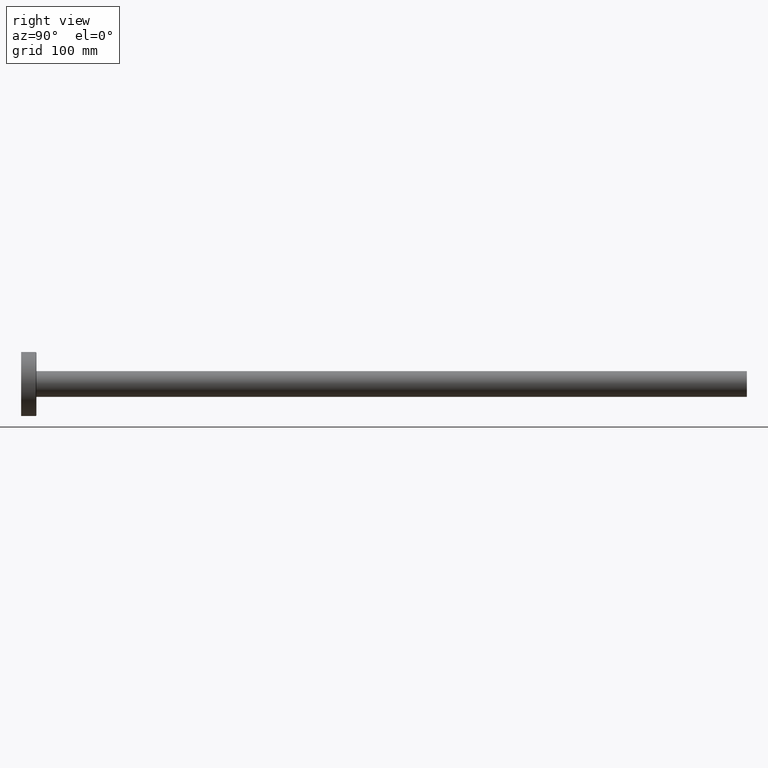
[diagram: clean part render]
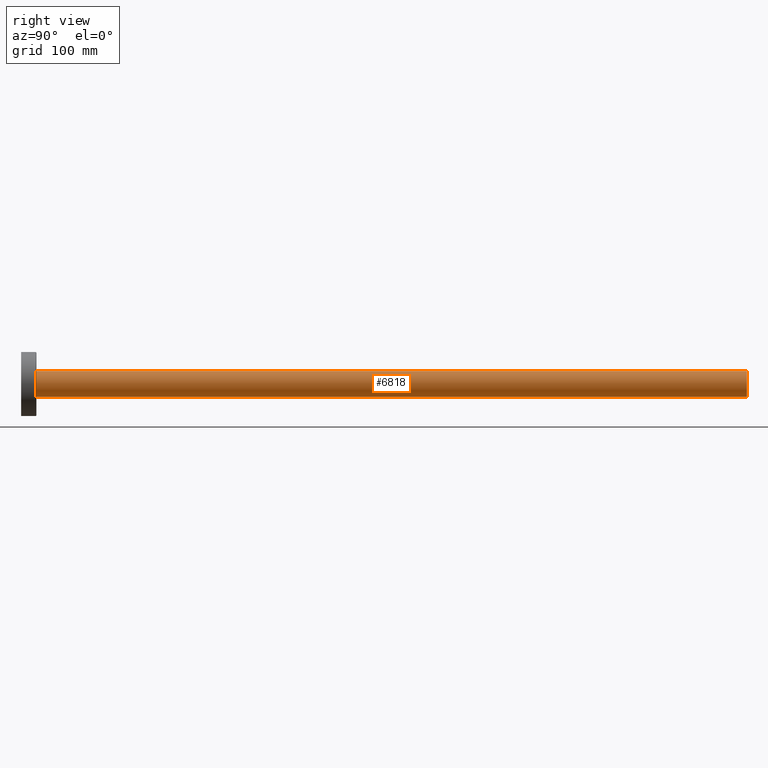
[diagram: same view with one face highlighted and labeled with its STEP entity id]
A machine part, right view. The second image highlights one B-rep face of the part: STEP entity #6818.
In plain terms, the highlighted cylindrical surface (edge-blend (fillet) strip) has radius 21.2 mm, axis along (-0, -1, -0).
Its self-contained STEP definition (entity closure, byte-faithful):
#26 = VERTEX_POINT ( 'NONE', #7627 ) ;
#736 = DIRECTION ( 'NONE',  ( -0.0000000000000000000, -1.000000000000000000, -0.0000000000000000000 ) ) ;
#775 = CARTESIAN_POINT ( 'NONE',  ( 0.0000000000000000000, 0.0000000000000000000, -21.19999999999999900 ) ) ;
#1147 = EDGE_CURVE ( 'NONE', #9317, #11916, #4650, .T. ) ;
#1333 = DIRECTION ( 'NONE',  ( -0.0000000000000000000, -1.000000000000000000, -0.0000000000000000000 ) ) ;
#1645 = CARTESIAN_POINT ( 'NONE',  ( 0.0000000000000000000, 1190.000000000000000, 0.0000000000000000000 ) ) ;
#3494 = AXIS2_PLACEMENT_3D ( 'NONE', #9278, #13779, #4890 ) ;
#3705 = DIRECTION ( 'NONE',  ( 0.0000000000000000000, 0.0000000000000000000, 1.000000000000000000 ) ) ;
#3764 = DIRECTION ( 'NONE',  ( 0.0000000000000000000, 0.0000000000000000000, 1.000000000000000000 ) ) ;
#4650 = CIRCLE ( 'NONE', #10710, 21.19999999999999900 ) ;
#4884 = CARTESIAN_POINT ( 'NONE',  ( 0.0000000000000000000, 0.0000000000000000000, 0.0000000000000000000 ) ) ;
#4890 = DIRECTION ( 'NONE',  ( 0.0000000000000000000, 0.0000000000000000000, -1.000000000000000000 ) ) ;
#5295 = CARTESIAN_POINT ( 'NONE',  ( 2.596251214192388800E-015, 1190.000000000000000, 21.19999999999999900 ) ) ;
#5490 = CIRCLE ( 'NONE', #12925, 21.19999999999999900 ) ;
#5659 = VECTOR ( 'NONE', #1333, 1000.000000000000000 ) ;
#5746 = FACE_OUTER_BOUND ( 'NONE', #8746, .T. ) ;
#5856 = CARTESIAN_POINT ( 'NONE',  ( 0.0000000000000000000, 1190.000000000000000, -21.19999999999999900 ) ) ;
#6818 = ADVANCED_FACE ( 'NONE', ( #5746 ), #13437, .T. ) ;
#6915 = ORIENTED_EDGE ( 'NONE', *, *, #10115, .F. ) ;
#7061 = VERTEX_POINT ( 'NONE', #775 ) ;
#7065 = ORIENTED_EDGE ( 'NONE', *, *, #14230, .T. ) ;
#7627 = CARTESIAN_POINT ( 'NONE',  ( 2.596251214192388800E-015, 0.0000000000000000000, 21.19999999999999900 ) ) ;
#8292 = ORIENTED_EDGE ( 'NONE', *, *, #13862, .T. ) ;
#8746 = EDGE_LOOP ( 'NONE', ( #13335, #7065, #8292, #6915 ) ) ;
#9017 = VECTOR ( 'NONE', #736, 1000.000000000000000 ) ;
#9278 = CARTESIAN_POINT ( 'NONE',  ( 0.0000000000000000000, 1190.000000000000000, 0.0000000000000000000 ) ) ;
#9306 = DIRECTION ( 'NONE',  ( 0.0000000000000000000, 1.000000000000000000, 0.0000000000000000000 ) ) ;
#9317 = VERTEX_POINT ( 'NONE', #5295 ) ;
#10115 = EDGE_CURVE ( 'NONE', #11916, #7061, #10255, .T. ) ;
#10202 = CARTESIAN_POINT ( 'NONE',  ( 0.0000000000000000000, 1190.000000000000000, -21.19999999999999900 ) ) ;
#10255 = LINE ( 'NONE', #10202, #9017 ) ;
#10710 = AXIS2_PLACEMENT_3D ( 'NONE', #1645, #9306, #3705 ) ;
#11619 = LINE ( 'NONE', #13424, #5659 ) ;
#11733 = DIRECTION ( 'NONE',  ( 0.0000000000000000000, 1.000000000000000000, 0.0000000000000000000 ) ) ;
#11916 = VERTEX_POINT ( 'NONE', #5856 ) ;
#12925 = AXIS2_PLACEMENT_3D ( 'NONE', #4884, #11733, #3764 ) ;
#13335 = ORIENTED_EDGE ( 'NONE', *, *, #1147, .F. ) ;
#13424 = CARTESIAN_POINT ( 'NONE',  ( 2.596251214192388800E-015, 1190.000000000000000, 21.19999999999999900 ) ) ;
#13437 = CYLINDRICAL_SURFACE ( 'NONE', #3494, 21.19999999999999900 ) ;
#13779 = DIRECTION ( 'NONE',  ( -0.0000000000000000000, -1.000000000000000000, -0.0000000000000000000 ) ) ;
#13862 = EDGE_CURVE ( 'NONE', #26, #7061, #5490, .T. ) ;
#14230 = EDGE_CURVE ( 'NONE', #9317, #26, #11619, .T. ) ;